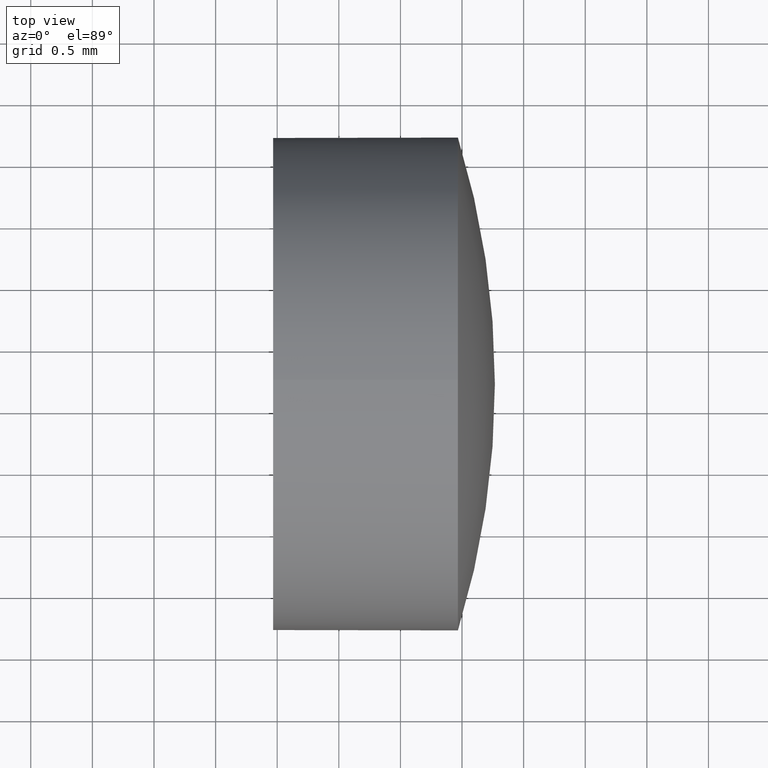
[diagram: clean part render]
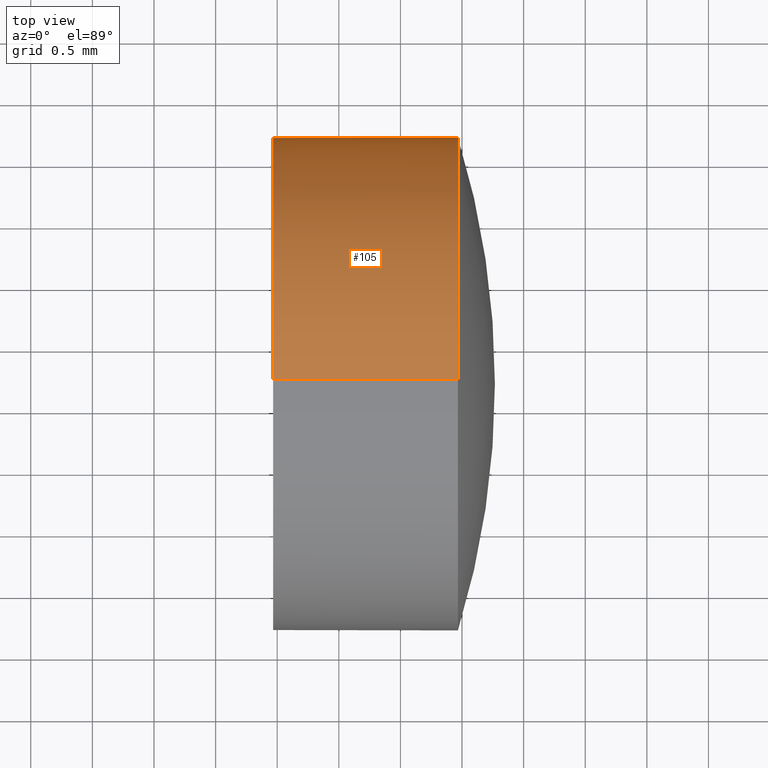
[diagram: same view with one face highlighted and labeled with its STEP entity id]
A machine part, top view. The second image highlights one B-rep face of the part: STEP entity #105.
In plain terms, the highlighted cylindrical surface (partial cylindrical patch) has radius 2 mm, axis along (-1, -0, -0).
Its self-contained STEP definition (entity closure, byte-faithful):
#4 = ORIENTED_EDGE ( 'NONE', *, *, #134, .T. ) ;
#7 = CARTESIAN_POINT ( 'NONE',  ( 382.9667065319727000, 60.20486323735121900, 0.0000000000000000000 ) ) ;
#8 = VERTEX_POINT ( 'NONE', #140 ) ;
#9 = DIRECTION ( 'NONE',  ( -1.000000000000000000, -0.0000000000000000000, -0.0000000000000000000 ) ) ;
#10 = DIRECTION ( 'NONE',  ( -1.000000000000000000, -0.0000000000000000000, -0.0000000000000000000 ) ) ;
#19 = CYLINDRICAL_SURFACE ( 'NONE', #31, 2.000000000000001800 ) ;
#20 = VERTEX_POINT ( 'NONE', #78 ) ;
#22 = DIRECTION ( 'NONE',  ( 0.0000000000000000000, 0.0000000000000000000, 1.000000000000000000 ) ) ;
#28 = VECTOR ( 'NONE', #34, 1000.000000000000000 ) ;
#31 = AXIS2_PLACEMENT_3D ( 'NONE', #83, #10, #173 ) ;
#34 = DIRECTION ( 'NONE',  ( -1.000000000000000000, -0.0000000000000000000, -0.0000000000000000000 ) ) ;
#36 = CARTESIAN_POINT ( 'NONE',  ( 384.4667065319727000, 60.20486323735121900, 0.0000000000000000000 ) ) ;
#41 = VERTEX_POINT ( 'NONE', #156 ) ;
#46 = FACE_OUTER_BOUND ( 'NONE', #50, .T. ) ;
#50 = EDGE_LOOP ( 'NONE', ( #165, #4, #161, #87, #94 ) ) ;
#57 = DIRECTION ( 'NONE',  ( -1.000000000000000000, -0.0000000000000000000, -0.0000000000000000000 ) ) ;
#71 = DIRECTION ( 'NONE',  ( -1.000000000000000000, -0.0000000000000000000, -0.0000000000000000000 ) ) ;
#75 = VERTEX_POINT ( 'NONE', #124 ) ;
#78 = CARTESIAN_POINT ( 'NONE',  ( 382.9667065319727000, 60.20486323735121900, -2.000000000000001800 ) ) ;
#83 = CARTESIAN_POINT ( 'NONE',  ( 382.5385998379259700, 60.20486323735121900, 0.0000000000000000000 ) ) ;
#84 = CARTESIAN_POINT ( 'NONE',  ( 384.4667065319727000, 62.20486323735124000, 0.0000000000000000000 ) ) ;
#85 = EDGE_CURVE ( 'NONE', #8, #20, #91, .T. ) ;
#87 = ORIENTED_EDGE ( 'NONE', *, *, #177, .F. ) ;
#91 = CIRCLE ( 'NONE', #166, 2.000000000000001800 ) ;
#92 = EDGE_CURVE ( 'NONE', #120, #41, #132, .T. ) ;
#94 = ORIENTED_EDGE ( 'NONE', *, *, #104, .T. ) ;
#101 = DIRECTION ( 'NONE',  ( 0.0000000000000000000, 0.0000000000000000000, 1.000000000000000000 ) ) ;
#104 = EDGE_CURVE ( 'NONE', #75, #120, #135, .T. ) ;
#105 = ADVANCED_FACE ( 'NONE', ( #46 ), #19, .T. ) ;
#120 = VERTEX_POINT ( 'NONE', #84 ) ;
#122 = VECTOR ( 'NONE', #158, 1000.000000000000000 ) ;
#124 = CARTESIAN_POINT ( 'NONE',  ( 384.4667065319727000, 60.20486323735121900, 2.000000000000001800 ) ) ;
#127 = LINE ( 'NONE', #175, #28 ) ;
#132 = CIRCLE ( 'NONE', #186, 2.000000000000001800 ) ;
#134 = EDGE_CURVE ( 'NONE', #41, #20, #127, .T. ) ;
#135 = CIRCLE ( 'NONE', #159, 2.000000000000001800 ) ;
#140 = CARTESIAN_POINT ( 'NONE',  ( 382.9667065319727000, 60.20486323735121900, 2.000000000000001800 ) ) ;
#142 = CARTESIAN_POINT ( 'NONE',  ( 382.5385998379259700, 60.20486323735121900, 2.000000000000001800 ) ) ;
#156 = CARTESIAN_POINT ( 'NONE',  ( 384.4667065319727000, 60.20486323735121900, -2.000000000000001800 ) ) ;
#158 = DIRECTION ( 'NONE',  ( -1.000000000000000000, -0.0000000000000000000, -0.0000000000000000000 ) ) ;
#159 = AXIS2_PLACEMENT_3D ( 'NONE', #36, #57, #160 ) ;
#160 = DIRECTION ( 'NONE',  ( 0.0000000000000000000, 0.0000000000000000000, 1.000000000000000000 ) ) ;
#161 = ORIENTED_EDGE ( 'NONE', *, *, #85, .F. ) ;
#162 = CARTESIAN_POINT ( 'NONE',  ( 384.4667065319727000, 60.20486323735121900, 0.0000000000000000000 ) ) ;
#165 = ORIENTED_EDGE ( 'NONE', *, *, #92, .T. ) ;
#166 = AXIS2_PLACEMENT_3D ( 'NONE', #7, #9, #22 ) ;
#173 = DIRECTION ( 'NONE',  ( 0.0000000000000000000, 0.0000000000000000000, 1.000000000000000000 ) ) ;
#175 = CARTESIAN_POINT ( 'NONE',  ( 382.5385998379259700, 60.20486323735121900, -2.000000000000001800 ) ) ;
#177 = EDGE_CURVE ( 'NONE', #75, #8, #180, .T. ) ;
#180 = LINE ( 'NONE', #142, #122 ) ;
#186 = AXIS2_PLACEMENT_3D ( 'NONE', #162, #71, #101 ) ;